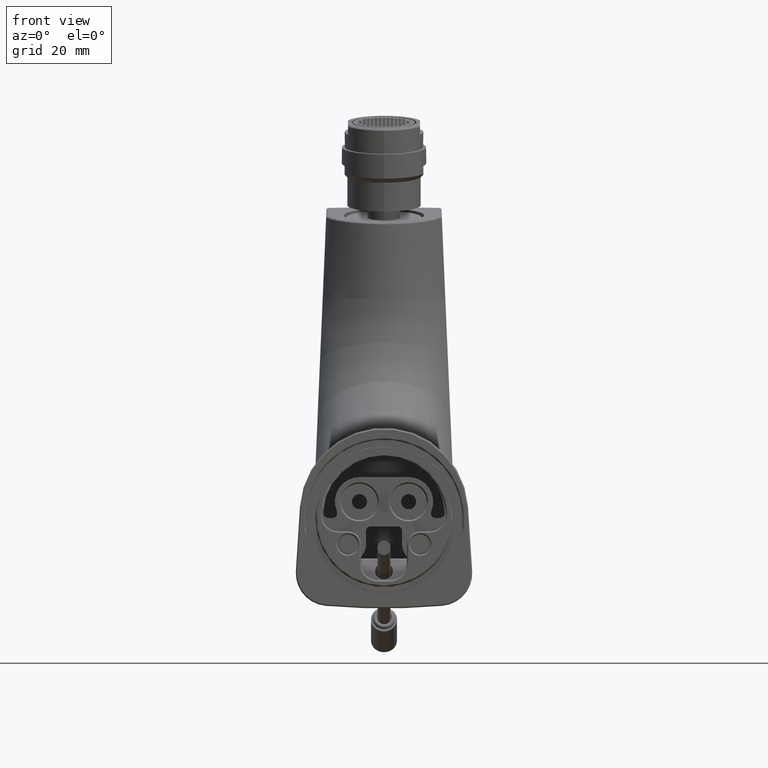
[diagram: clean part render]
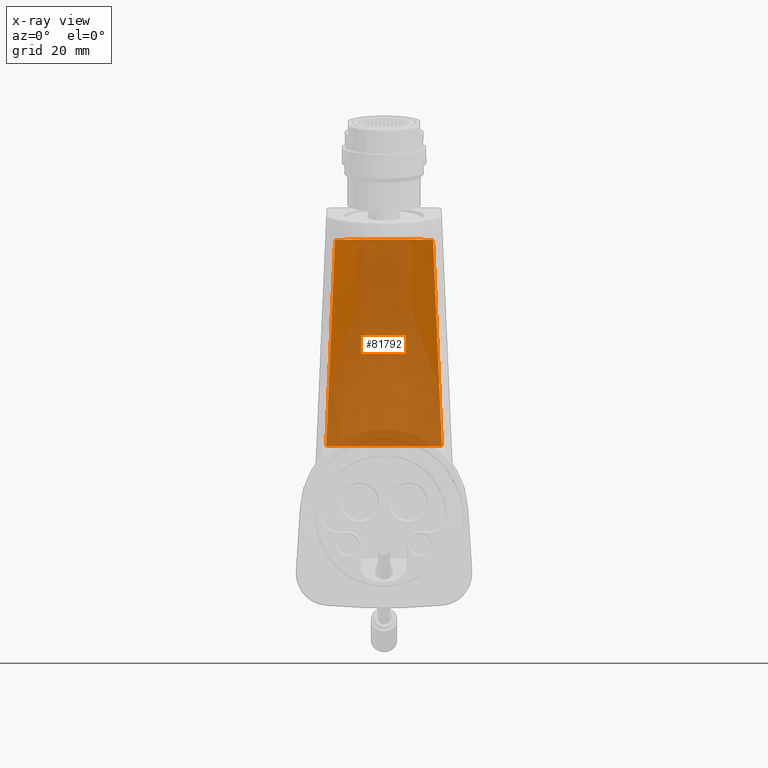
[diagram: x-ray — body ghosted, one internal face saturated and labeled with its STEP entity id]
A machine part, front view, then the same camera in x-ray: the body is ghosted and one INTERNAL B-rep face — a face not visible from any outside direction — is saturated and labeled: STEP entity #81792.
In plain terms, the highlighted face is a freeform B-spline surface patch.
Its self-contained STEP definition (entity closure, byte-faithful):
#27602=CARTESIAN_POINT('',(-1.493792140516E1,1.009787529847E2,
8.484747816457E1));
#27603=CARTESIAN_POINT('',(-1.417722340719E1,1.010826222864E2,
8.486579312493E1));
#27604=CARTESIAN_POINT('',(-1.265696630312E1,1.012744248967E2,
8.489961309961E1));
#27605=CARTESIAN_POINT('',(-1.037959566381E1,1.015144598868E2,
8.494193774684E1));
#27606=CARTESIAN_POINT('',(-8.106502598595E0,1.017068177965E2,
8.497585562839E1));
#27607=CARTESIAN_POINT('',(-6.594823836905E0,1.018033525928E2,
8.499287733714E1));
#27608=CARTESIAN_POINT('',(-5.839853416205E0,1.018437470680E2,
8.499999997298E1));
#27610=CARTESIAN_POINT('',(5.839853415242E0,1.018437470680E2,8.499999997298E1));
#27611=CARTESIAN_POINT('',(5.120058006236E0,1.018822646905E2,8.499999997298E1));
#27612=CARTESIAN_POINT('',(3.635320467266E0,1.019477358208E2,8.500000001228E1));
#27613=CARTESIAN_POINT('',(1.225846160552E0,1.020022860954E2,8.499999999754E1));
#27614=CARTESIAN_POINT('',(-1.225844556892E0,1.020022861095E2,
8.499999999754E1));
#27615=CARTESIAN_POINT('',(-3.635318484906E0,1.019477358904E2,
8.500000001228E1));
#27616=CARTESIAN_POINT('',(-5.120057201956E0,1.018822647336E2,
8.499999997298E1));
#27617=CARTESIAN_POINT('',(-5.839853416205E0,1.018437470680E2,
8.499999997298E1));
#27619=CARTESIAN_POINT('',(5.839853415242E0,1.018437470680E2,8.499999997298E1));
#27620=CARTESIAN_POINT('',(6.594823835797E0,1.018033525928E2,8.499287733714E1));
#27621=CARTESIAN_POINT('',(8.106502598681E0,1.017068177965E2,8.497585562840E1));
#27622=CARTESIAN_POINT('',(1.037959566897E1,1.015144598863E2,8.494193774675E1));
#27623=CARTESIAN_POINT('',(1.265696630278E1,1.012744248967E2,8.489961309961E1));
#27624=CARTESIAN_POINT('',(1.417722340705E1,1.010826222864E2,8.486579312494E1));
#27625=CARTESIAN_POINT('',(1.493792140516E1,1.009787529847E2,8.484747816457E1));
#27627=CARTESIAN_POINT('',(1.571295983160E1,1.009637336684E2,6.681527376865E1));
#27628=CARTESIAN_POINT('',(1.562484634990E1,1.009653791912E2,6.886534026588E1));
#27629=CARTESIAN_POINT('',(1.544995139507E1,1.009686861359E2,7.293448247301E1));
#27630=CARTESIAN_POINT('',(1.519160527784E1,1.009736931939E2,7.894521669196E1));
#27631=CARTESIAN_POINT('',(1.502203864320E1,1.009770614923E2,8.289038909909E1));
#27632=CARTESIAN_POINT('',(1.493792140516E1,1.009787529847E2,8.484747816457E1));
#27634=CARTESIAN_POINT('',(1.571295983160E1,1.009637336684E2,6.681527376865E1));
#27635=CARTESIAN_POINT('',(1.594760741684E1,1.009593516154E2,6.135591449862E1));
#27636=CARTESIAN_POINT('',(1.640314369016E1,1.009511321205E2,5.075731330690E1));
#27637=CARTESIAN_POINT('',(1.704521215330E1,1.009402214696E2,3.581881559058E1));
#27638=CARTESIAN_POINT('',(1.744575460155E1,1.009337780735E2,2.649971211176E1));
#27639=CARTESIAN_POINT('',(1.763915579189E1,1.009307397233E2,2.2E1));
#27641=CARTESIAN_POINT('',(1.763915579189E1,1.009307397233E2,2.2E1));
#27642=CARTESIAN_POINT('',(1.666394656761E1,1.010486631243E2,2.2E1));
#27643=CARTESIAN_POINT('',(1.471045923945E1,1.012655374153E2,2.2E1));
#27644=CARTESIAN_POINT('',(1.176837886837E1,1.015332611918E2,2.2E1));
#27645=CARTESIAN_POINT('',(8.821960822872E0,1.017419645798E2,2.2E1));
#27646=CARTESIAN_POINT('',(5.876167347228E0,1.018910021567E2,2.2E1));
#27647=CARTESIAN_POINT('',(2.936613846754E0,1.019801979201E2,2.2E1));
#27648=CARTESIAN_POINT('',(1.430127506847E-4,1.020098996802E2,2.2E1));
#27649=CARTESIAN_POINT('',(-2.936366774162E0,1.019802033588E2,2.2E1));
#27650=CARTESIAN_POINT('',(-5.875988736840E0,1.018910098008E2,2.2E1));
#27651=CARTESIAN_POINT('',(-8.821831362566E0,1.017419727223E2,2.2E1));
#27652=CARTESIAN_POINT('',(-1.176828862460E1,1.015332687422E2,2.2E1));
#27653=CARTESIAN_POINT('',(-1.471040725450E1,1.012655429566E2,2.2E1));
#27654=CARTESIAN_POINT('',(-1.666392836477E1,1.010486653254E2,2.2E1));
#27655=CARTESIAN_POINT('',(-1.763915579189E1,1.009307397233E2,2.2E1));
#27657=CARTESIAN_POINT('',(-1.763915579189E1,1.009307397233E2,2.2E1));
#27658=CARTESIAN_POINT('',(-1.744575315258E1,1.009337780962E2,
2.649974582383E1));
#27659=CARTESIAN_POINT('',(-1.704520877205E1,1.009402215250E2,
3.581889425954E1));
#27660=CARTESIAN_POINT('',(-1.640314030901E1,1.009511321802E2,
5.075739197340E1));
#27661=CARTESIAN_POINT('',(-1.594760596759E1,1.009593516424E2,
6.135594821723E1));
#27662=CARTESIAN_POINT('',(-1.571295983160E1,1.009637336684E2,
6.681527376865E1));
#27664=CARTESIAN_POINT('',(-1.571295983160E1,1.009637336684E2,
6.681527376865E1));
#27665=CARTESIAN_POINT('',(-1.562484634990E1,1.009653791912E2,
6.886534026588E1));
#27666=CARTESIAN_POINT('',(-1.544995139507E1,1.009686861359E2,
7.293448247301E1));
#27667=CARTESIAN_POINT('',(-1.519160527784E1,1.009736931939E2,
7.894521669196E1));
#27668=CARTESIAN_POINT('',(-1.502203864320E1,1.009770614923E2,
8.289038909909E1));
#27669=CARTESIAN_POINT('',(-1.493792140516E1,1.009787529847E2,
8.484747816457E1));
#36385=VERTEX_POINT('',#27641);
#36386=VERTEX_POINT('',#27655);
#36663=CARTESIAN_POINT('',(-1.571295983160E1,1.009637336684E2,
6.681527376865E1));
#36665=VERTEX_POINT('',#36663);
#36667=CARTESIAN_POINT('',(1.571295983160E1,1.009637336684E2,6.681527376865E1));
#36669=VERTEX_POINT('',#36667);
#36717=VERTEX_POINT('',#27602);
#36718=VERTEX_POINT('',#27608);
#36719=VERTEX_POINT('',#27619);
#36720=VERTEX_POINT('',#27625);
#81720=CARTESIAN_POINT('',(-1.803755120751E1,1.008878548315E2,
2.076273570394E1));
#81721=CARTESIAN_POINT('',(-1.757854645214E1,1.008889565514E2,
3.255958464088E1));
#81722=CARTESIAN_POINT('',(-1.678266942835E1,1.008910731432E2,
5.298541306772E1));
#81723=CARTESIAN_POINT('',(-1.592846896407E1,1.008938593688E2,
7.484126270592E1));
#81724=CARTESIAN_POINT('',(-1.553462139197E1,1.008952924590E2,
8.490031483792E1));
#81725=CARTESIAN_POINT('',(-1.547861280466E1,1.008954993865E2,
8.633042435975E1));
#81726=CARTESIAN_POINT('',(-1.803263318438E1,1.008884612295E2,
2.076239433681E1));
#81727=CARTESIAN_POINT('',(-1.757375347618E1,1.008895623558E2,
3.255929892545E1));
#81728=CARTESIAN_POINT('',(-1.677809326287E1,1.008916778074E2,
5.298522373462E1));
#81729=CARTESIAN_POINT('',(-1.592412546606E1,1.008944625326E2,
7.484117655672E1));
#81730=CARTESIAN_POINT('',(-1.553038516033E1,1.008958948513E2,
8.490027619314E1));
#81731=CARTESIAN_POINT('',(-1.547439182703E1,1.008961016674E2,
8.633039246905E1));
#81732=CARTESIAN_POINT('',(-1.652519966531E1,1.010742535386E2,
2.065780391473E1));
#81733=CARTESIAN_POINT('',(-1.610464846529E1,1.010751728146E2,
3.247175945863E1));
#81734=CARTESIAN_POINT('',(-1.537544335080E1,1.010769389138E2,
5.292721455450E1));
#81735=CARTESIAN_POINT('',(-1.459279103107E1,1.010792639173E2,
7.481478157385E1));
#81736=CARTESIAN_POINT('',(-1.423192920803E1,1.010804598597E2,
8.488843594626E1));
#81737=CARTESIAN_POINT('',(-1.418061141827E1,1.010806325466E2,
8.632062158212E1));
#81738=CARTESIAN_POINT('',(-1.051113098615E1,1.017225566355E2,
2.029278910760E1));
#81739=CARTESIAN_POINT('',(-1.024354140367E1,1.017228369484E2,
3.216625281622E1));
#81740=CARTESIAN_POINT('',(-9.779550589793E0,1.017233755187E2,
5.272476932358E1));
#81741=CARTESIAN_POINT('',(-9.281523567161E0,1.017240848928E2,
7.472267109973E1));
#81742=CARTESIAN_POINT('',(-9.051886588831E0,1.017244499659E2,
8.484712221414E1));
#81743=CARTESIAN_POINT('',(-9.019229958097E0,1.017245026842E2,
8.628653002113E1));
#81744=CARTESIAN_POINT('',(-2.842170943040E-14,1.022080825234E2,
2.001927122175E1));
#81745=CARTESIAN_POINT('',(1.421085471520E-13,1.022078722887E2,
3.193733020059E1));
#81746=CARTESIAN_POINT('',(-1.398881011028E-12,1.022074683610E2,
5.257308106184E1));
#81747=CARTESIAN_POINT('',(1.276312389109E-12,1.022069363304E2,
7.465366909067E1));
#81748=CARTESIAN_POINT('',(-4.205524817280E-13,1.022066625256E2,
8.481618835553E1));
#81749=CARTESIAN_POINT('',(-5.040412531798E-13,1.022066229868E2,
8.626100861946E1));
#81750=CARTESIAN_POINT('',(1.051113098615E1,1.017225566355E2,2.029278910760E1));
#81751=CARTESIAN_POINT('',(1.024354140367E1,1.017228369484E2,3.216625281622E1));
#81752=CARTESIAN_POINT('',(9.779550589797E0,1.017233755187E2,5.272476932357E1));
#81753=CARTESIAN_POINT('',(9.281523567157E0,1.017240848928E2,7.472267109974E1));
#81754=CARTESIAN_POINT('',(9.051886588832E0,1.017244499659E2,8.484712221414E1));
#81755=CARTESIAN_POINT('',(9.019229958098E0,1.017245026842E2,8.628653002114E1));
#81756=CARTESIAN_POINT('',(1.652526792244E1,1.010742461806E2,2.065780805749E1));
#81757=CARTESIAN_POINT('',(1.610471498637E1,1.010751654639E2,3.247176292600E1));
#81758=CARTESIAN_POINT('',(1.537550686181E1,1.010769315770E2,5.292721685218E1));
#81759=CARTESIAN_POINT('',(1.459285131171E1,1.010792565989E2,7.481478261925E1));
#81760=CARTESIAN_POINT('',(1.423198799931E1,1.010804525507E2,8.488843641515E1));
#81761=CARTESIAN_POINT('',(1.418066999776E1,1.010806252389E2,8.632062196905E1));
#81762=CARTESIAN_POINT('',(1.803276971933E1,1.008884444014E2,2.076240381006E1));
#81763=CARTESIAN_POINT('',(1.757388653954E1,1.008895455442E2,3.255930685431E1));
#81764=CARTESIAN_POINT('',(1.677822030709E1,1.008916610274E2,5.298522898879E1));
#81765=CARTESIAN_POINT('',(1.592424605093E1,1.008944457943E2,7.484117894743E1));
#81766=CARTESIAN_POINT('',(1.553050276725E1,1.008958781344E2,8.490027726557E1));
#81767=CARTESIAN_POINT('',(1.547450901046E1,1.008960849536E2,8.633039335404E1));
#81768=CARTESIAN_POINT('',(1.803775601003E1,1.008878295790E2,2.076274991966E1));
#81769=CARTESIAN_POINT('',(1.757874604728E1,1.008889313236E2,3.255959653907E1));
#81770=CARTESIAN_POINT('',(1.678285999480E1,1.008910479629E2,5.298542095221E1));
#81771=CARTESIAN_POINT('',(1.592864984149E1,1.008938342510E2,7.484126629347E1));
#81772=CARTESIAN_POINT('',(1.553479780247E1,1.008952673733E2,8.490031644722E1));
#81773=CARTESIAN_POINT('',(1.547878857993E1,1.008954743054E2,8.633042568779E1));
#81774=B_SPLINE_SURFACE_WITH_KNOTS('',3,3,((#81720,#81721,#81722,#81723,#81724,
#81725),(#81726,#81727,#81728,#81729,#81730,#81731),(#81732,#81733,#81734,
#81735,#81736,#81737),(#81738,#81739,#81740,#81741,#81742,#81743),(#81744,
#81745,#81746,#81747,#81748,#81749),(#81750,#81751,#81752,#81753,#81754,#81755),
(#81756,#81757,#81758,#81759,#81760,#81761),(#81762,#81763,#81764,#81765,#81766,
#81767),(#81768,#81769,#81770,#81771,#81772,#81773)),.UNSPECIFIED.,.F.,.F.,.F.,(
4,1,1,1,1,1,4),(4,1,1,4),(5.519186763028E-2,5.555555555556E-2,1.666666666667E-1,
5.E-1,8.333333333333E-1,9.444444444444E-1,9.448131807534E-1),(3.628637716837E-1,
6.666666666667E-1,8.888888888889E-1,9.257186924514E-1),.UNSPECIFIED.);
#81776=ORIENTED_EDGE('',*,*,#81775,.T.);
#81778=ORIENTED_EDGE('',*,*,#81777,.F.);
#81780=ORIENTED_EDGE('',*,*,#81779,.T.);
#81782=ORIENTED_EDGE('',*,*,#81781,.F.);
#81784=ORIENTED_EDGE('',*,*,#81783,.T.);
#81785=ORIENTED_EDGE('',*,*,#81693,.T.);
#81787=ORIENTED_EDGE('',*,*,#81786,.T.);
#81789=ORIENTED_EDGE('',*,*,#81788,.T.);
#81790=EDGE_LOOP('',(#81776,#81778,#81780,#81782,#81784,#81785,#81787,#81789));
#81791=FACE_OUTER_BOUND('',#81790,.F.);
#81792=ADVANCED_FACE('',(#81791),#81774,.T.);
#27609=B_SPLINE_CURVE_WITH_KNOTS('',3,(#27602,#27603,#27604,#27605,#27606,
#27607,#27608),.UNSPECIFIED.,.F.,.F.,(4,1,1,1,4),(0.E0,2.5E-1,5.E-1,7.5E-1,
1.E0),.UNSPECIFIED.);
#27618=B_SPLINE_CURVE_WITH_KNOTS('',3,(#27610,#27611,#27612,#27613,#27614,
#27615,#27616,#27617),.UNSPECIFIED.,.F.,.F.,(4,1,1,1,1,4),(0.E0,2.E-1,4.E-1,
6.E-1,8.E-1,1.E0),.UNSPECIFIED.);
#27626=B_SPLINE_CURVE_WITH_KNOTS('',3,(#27619,#27620,#27621,#27622,#27623,
#27624,#27625),.UNSPECIFIED.,.F.,.F.,(4,1,1,1,4),(0.E0,2.5E-1,5.E-1,7.5E-1,
1.E0),.UNSPECIFIED.);
#27633=B_SPLINE_CURVE_WITH_KNOTS('',3,(#27627,#27628,#27629,#27630,#27631,
#27632),.UNSPECIFIED.,.F.,.F.,(4,1,1,4),(0.E0,3.333333333333E-1,
6.666666666667E-1,1.E0),.UNSPECIFIED.);
#27640=B_SPLINE_CURVE_WITH_KNOTS('',3,(#27634,#27635,#27636,#27637,#27638,
#27639),.UNSPECIFIED.,.F.,.F.,(4,1,1,4),(0.E0,3.333333333333E-1,
6.666666666667E-1,1.E0),.UNSPECIFIED.);
#27656=B_SPLINE_CURVE_WITH_KNOTS('',3,(#27641,#27642,#27643,#27644,#27645,
#27646,#27647,#27648,#27649,#27650,#27651,#27652,#27653,#27654,#27655),
.UNSPECIFIED.,.F.,.F.,(4,1,1,1,1,1,1,1,1,1,1,1,4),(0.E0,8.333333333333E-2,
1.666666666667E-1,2.5E-1,3.333333333333E-1,4.166666666667E-1,5.E-1,
5.833333333333E-1,6.666666666667E-1,7.5E-1,8.333333333333E-1,9.166666666667E-1,
1.E0),.UNSPECIFIED.);
#27663=B_SPLINE_CURVE_WITH_KNOTS('',3,(#27657,#27658,#27659,#27660,#27661,
#27662),.UNSPECIFIED.,.F.,.F.,(4,1,1,4),(0.E0,3.333333333333E-1,
6.666666666667E-1,1.E0),.UNSPECIFIED.);
#27670=B_SPLINE_CURVE_WITH_KNOTS('',3,(#27664,#27665,#27666,#27667,#27668,
#27669),.UNSPECIFIED.,.F.,.F.,(4,1,1,4),(0.E0,3.333333333333E-1,
6.666666666667E-1,1.E0),.UNSPECIFIED.);
#81693=EDGE_CURVE('',#36385,#36386,#27656,.T.);
#81775=EDGE_CURVE('',#36717,#36718,#27609,.T.);
#81777=EDGE_CURVE('',#36719,#36718,#27618,.T.);
#81779=EDGE_CURVE('',#36719,#36720,#27626,.T.);
#81781=EDGE_CURVE('',#36669,#36720,#27633,.T.);
#81783=EDGE_CURVE('',#36669,#36385,#27640,.T.);
#81786=EDGE_CURVE('',#36386,#36665,#27663,.T.);
#81788=EDGE_CURVE('',#36665,#36717,#27670,.T.);